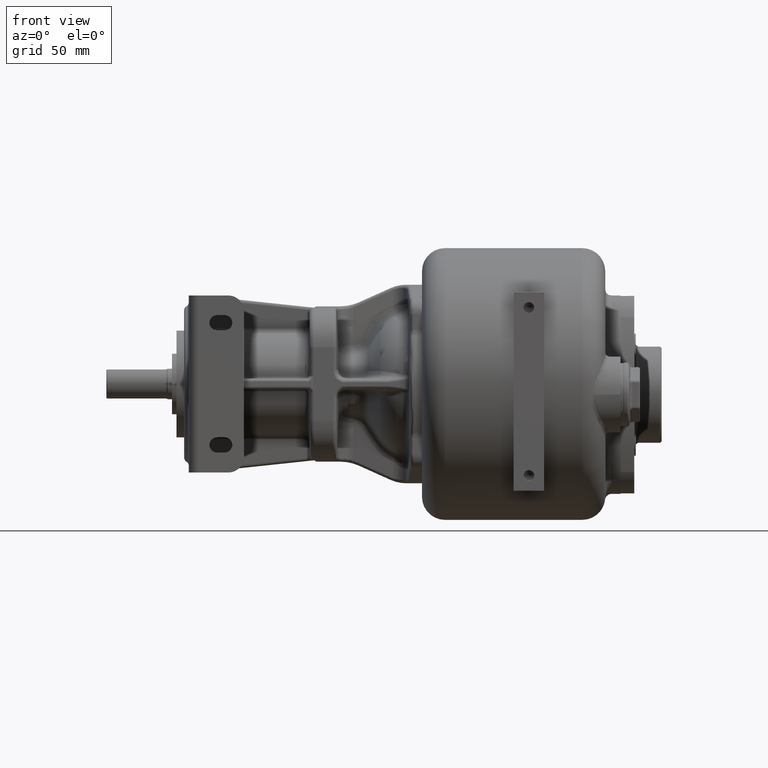
[diagram: clean part render]
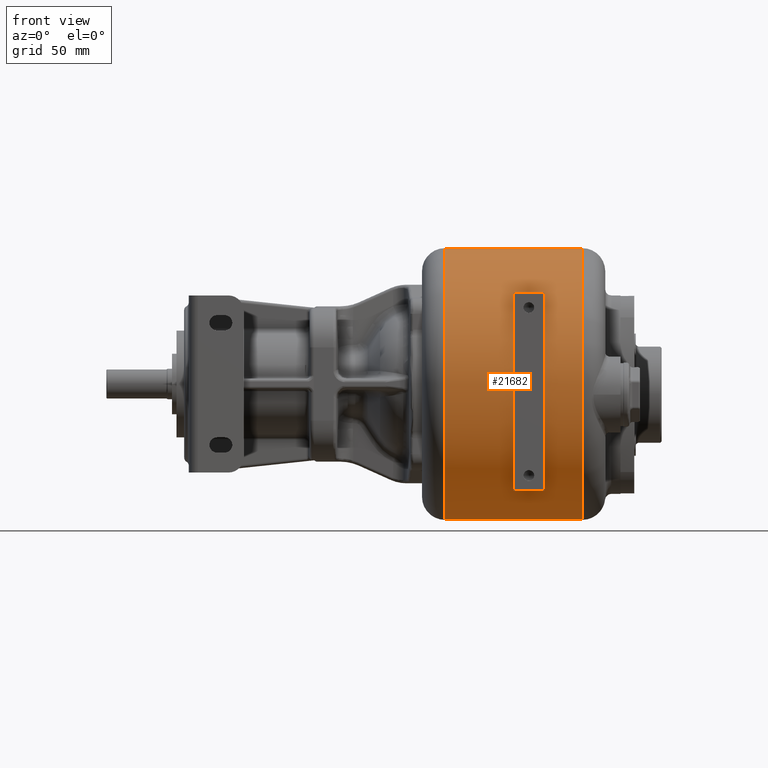
[diagram: same view with one face highlighted and labeled with its STEP entity id]
A machine part, front view. The second image highlights one B-rep face of the part: STEP entity #21682.
In plain terms, the highlighted cylindrical surface (partial cylindrical patch) has radius 89 mm, axis along (-1, 0, 0).
Its self-contained STEP definition (entity closure, byte-faithful):
#3788=CARTESIAN_POINT('',(-5.5E1,9.E1,0.E0));
#3789=DIRECTION('',(-1.E0,0.E0,0.E0));
#3790=DIRECTION('',(0.E0,0.E0,-1.E0));
#3791=AXIS2_PLACEMENT_3D('',#3788,#3789,#3790);
#3793=CARTESIAN_POINT('',(3.5E1,9.E1,0.E0));
#3794=DIRECTION('',(1.E0,0.E0,0.E0));
#3795=DIRECTION('',(0.E0,0.E0,1.E0));
#3796=AXIS2_PLACEMENT_3D('',#3793,#3794,#3795);
#3798=DIRECTION('',(1.E0,-6.647522039E-14,0.E0));
#3799=VECTOR('',#3798,9.E1);
#3800=CARTESIAN_POINT('',(-5.5E1,9.000000000001E1,-8.9E1));
#3801=LINE('',#3800,#3799);
#3802=DIRECTION('',(-1.E0,0.E0,0.E0));
#3803=VECTOR('',#3802,2.E1);
#3804=CARTESIAN_POINT('',(1.E1,3.503637566535E1,-7.E1));
#3805=LINE('',#3804,#3803);
#3806=CARTESIAN_POINT('',(1.E1,9.E1,0.E0));
#3807=DIRECTION('',(-1.E0,0.E0,0.E0));
#3808=DIRECTION('',(0.E0,-6.175688127488E-1,-7.865168539326E-1));
#3809=AXIS2_PLACEMENT_3D('',#3806,#3807,#3808);
#3811=DIRECTION('',(-1.E0,0.E0,0.E0));
#3812=VECTOR('',#3811,2.E1);
#3813=CARTESIAN_POINT('',(1.E1,2.426568628182E1,6.E1));
#3814=LINE('',#3813,#3812);
#3815=CARTESIAN_POINT('',(-1.E1,9.E1,0.E0));
#3816=DIRECTION('',(-1.E0,0.E0,0.E0));
#3817=DIRECTION('',(0.E0,-6.175688127488E-1,-7.865168539326E-1));
#3818=AXIS2_PLACEMENT_3D('',#3815,#3816,#3817);
#12896=DIRECTION('',(1.E0,1.260029118081E-13,0.E0));
#12897=VECTOR('',#12896,9.E1);
#12898=CARTESIAN_POINT('',(-5.5E1,9.000000000001E1,8.9E1));
#12899=LINE('',#12898,#12897);
#14240=CARTESIAN_POINT('',(-1.E1,3.503637566535E1,-7.E1));
#14241=VERTEX_POINT('',#14240);
#14242=CARTESIAN_POINT('',(1.E1,3.503637566535E1,-7.E1));
#14243=VERTEX_POINT('',#14242);
#14244=CARTESIAN_POINT('',(1.E1,2.426568628182E1,6.E1));
#14245=VERTEX_POINT('',#14244);
#14246=CARTESIAN_POINT('',(-1.E1,2.426568628182E1,6.E1));
#14247=VERTEX_POINT('',#14246);
#14324=CARTESIAN_POINT('',(3.5E1,9.000000000001E1,-8.9E1));
#14325=VERTEX_POINT('',#14324);
#14326=CARTESIAN_POINT('',(3.5E1,9.E1,8.9E1));
#14327=VERTEX_POINT('',#14326);
#14360=CARTESIAN_POINT('',(-5.5E1,9.000000000001E1,-8.9E1));
#14361=VERTEX_POINT('',#14360);
#14362=CARTESIAN_POINT('',(-5.5E1,9.E1,8.9E1));
#14363=VERTEX_POINT('',#14362);
#21658=CARTESIAN_POINT('',(-7.E1,9.E1,0.E0));
#21659=DIRECTION('',(-1.E0,0.E0,0.E0));
#21660=DIRECTION('',(0.E0,0.E0,1.E0));
#21661=AXIS2_PLACEMENT_3D('',#21658,#21659,#21660);
#21662=CYLINDRICAL_SURFACE('',#21661,8.9E1);
#21664=ORIENTED_EDGE('',*,*,#21663,.T.);
#21666=ORIENTED_EDGE('',*,*,#21665,.T.);
#21667=ORIENTED_EDGE('',*,*,#19191,.T.);
#21669=ORIENTED_EDGE('',*,*,#21668,.F.);
#21670=EDGE_LOOP('',(#21664,#21666,#21667,#21669));
#21671=FACE_OUTER_BOUND('',#21670,.F.);
#21673=ORIENTED_EDGE('',*,*,#21672,.F.);
#21675=ORIENTED_EDGE('',*,*,#21674,.T.);
#21677=ORIENTED_EDGE('',*,*,#21676,.T.);
#21679=ORIENTED_EDGE('',*,*,#21678,.F.);
#21680=EDGE_LOOP('',(#21673,#21675,#21677,#21679));
#21681=FACE_BOUND('',#21680,.F.);
#21682=ADVANCED_FACE('',(#21671,#21681),#21662,.T.);
#3792=CIRCLE('',#3791,8.9E1);
#3797=CIRCLE('',#3796,8.9E1);
#3810=CIRCLE('',#3809,8.9E1);
#3819=CIRCLE('',#3818,8.9E1);
#19191=EDGE_CURVE('',#14327,#14325,#3797,.T.);
#21663=EDGE_CURVE('',#14361,#14363,#3792,.T.);
#21665=EDGE_CURVE('',#14363,#14327,#12899,.T.);
#21668=EDGE_CURVE('',#14361,#14325,#3801,.T.);
#21672=EDGE_CURVE('',#14243,#14241,#3805,.T.);
#21674=EDGE_CURVE('',#14243,#14245,#3810,.T.);
#21676=EDGE_CURVE('',#14245,#14247,#3814,.T.);
#21678=EDGE_CURVE('',#14241,#14247,#3819,.T.);